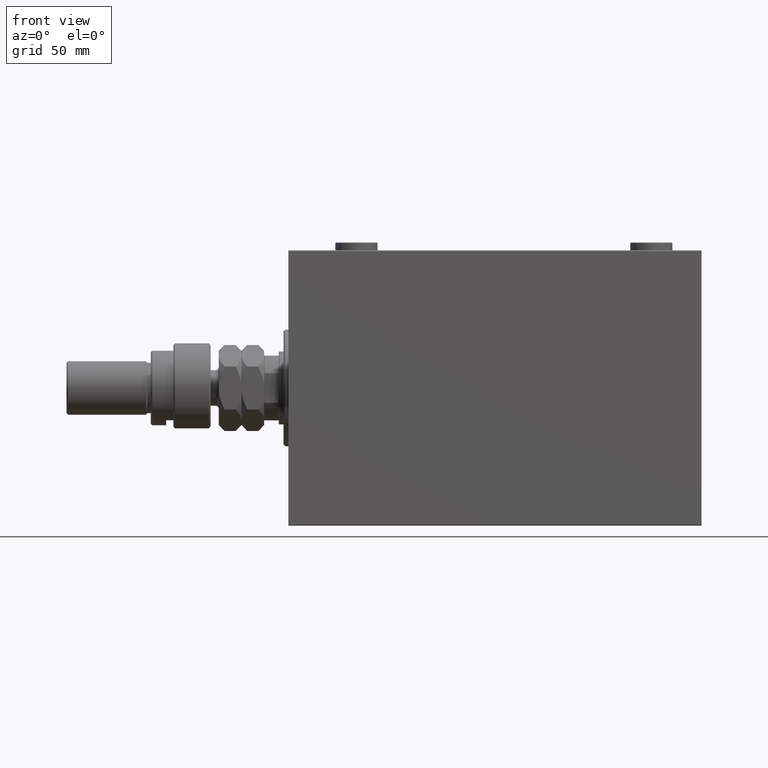
[diagram: clean part render]
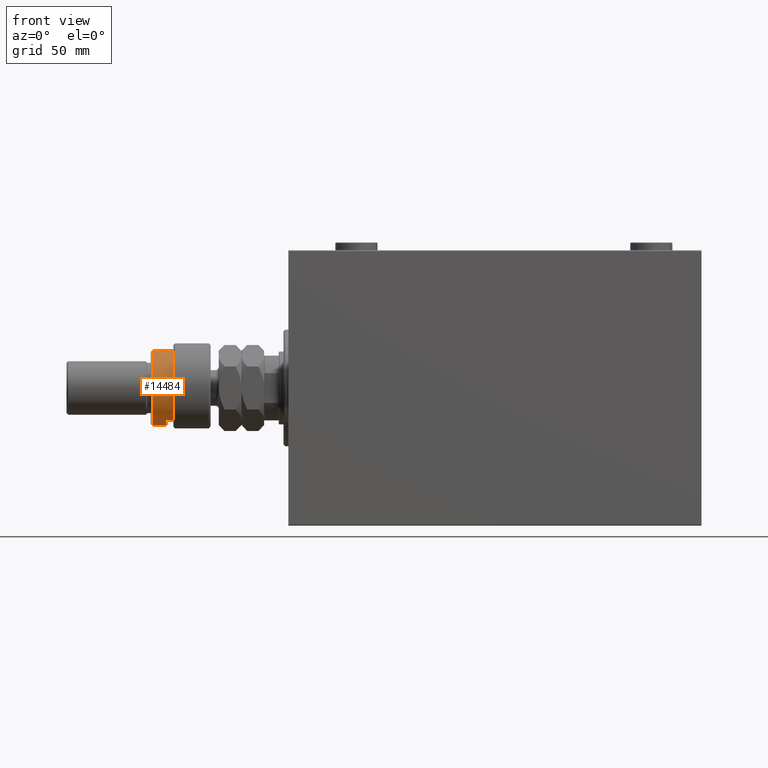
[diagram: same view with one face highlighted and labeled with its STEP entity id]
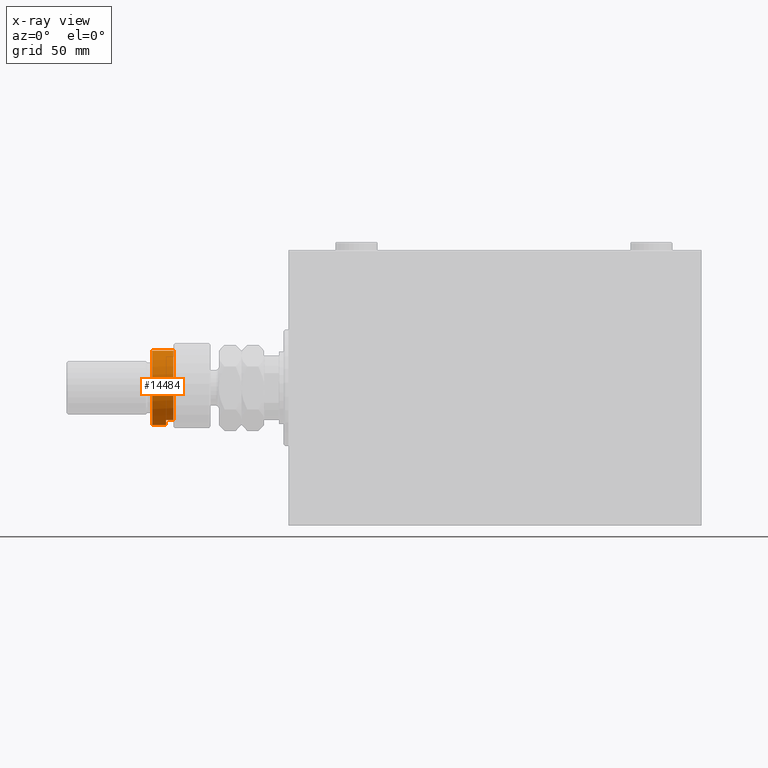
[diagram: x-ray of the same camera — body ghosted, the highlighted face saturated]
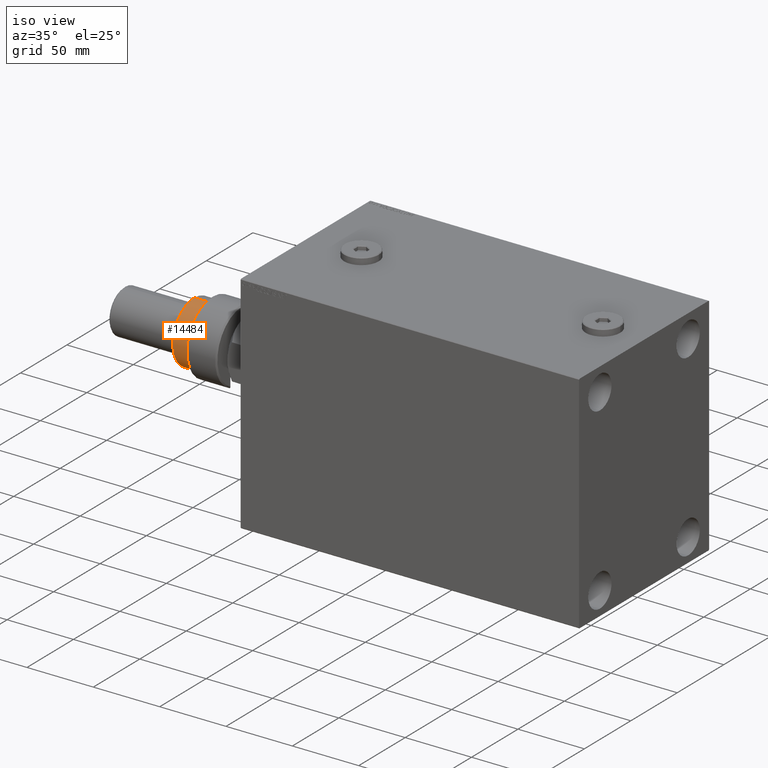
[diagram: same view with one face highlighted and labeled with its STEP entity id]
A machine part, front view. The second image highlights one B-rep face of the part: STEP entity #14484.
The next image is the same camera in x-ray: the body ghosted, the highlighted face saturated — about 0% of this face is hidden behind the body in this view.
A second angle (iso view) of the same face is appended — the face is thin or edge-on in the first view.
In plain terms, the highlighted cylindrical surface (partial cylindrical patch) has radius 23 mm, axis along (1, -0, -0).
Its self-contained STEP definition (entity closure, byte-faithful):
#106 = DIRECTION ( 'NONE',  ( 0.000000000000000000, 0.000000000000000000, -1.000000000000000000 ) ) ;
#1473 = CARTESIAN_POINT ( 'NONE',  ( 0.000000000000000000, 0.000000000000000000, 23.00000000000000000 ) ) ;
#2001 = VERTEX_POINT ( 'NONE', #19569 ) ;
#3390 = ORIENTED_EDGE ( 'NONE', *, *, #23024, .T. ) ;
#3996 = CARTESIAN_POINT ( 'NONE',  ( -23.00000000000000000, 0.000000000000000000, 37.00000000000000000 ) ) ;
#4250 = DIRECTION ( 'NONE',  ( -0.000000000000000000, -0.000000000000000000, -1.000000000000000000 ) ) ;
#4799 = LINE ( 'NONE', #31361, #11469 ) ;
#5177 = DIRECTION ( 'NONE',  ( -0.000000000000000000, -0.000000000000000000, -1.000000000000000000 ) ) ;
#6992 = EDGE_CURVE ( 'NONE', #31527, #31189, #41723, .T. ) ;
#7149 = CARTESIAN_POINT ( 'NONE',  ( 0.000000000000000000, 0.000000000000000000, 36.00000000000002842 ) ) ;
#7890 = ORIENTED_EDGE ( 'NONE', *, *, #18812, .F. ) ;
#7980 = ORIENTED_EDGE ( 'NONE', *, *, #41107, .T. ) ;
#8624 = CARTESIAN_POINT ( 'NONE',  ( 23.00000000000000000, 2.816687638038912352E-15, 37.00000000000000000 ) ) ;
#9263 = CIRCLE ( 'NONE', #24830, 23.00000000000000000 ) ;
#9884 = CARTESIAN_POINT ( 'NONE',  ( -19.91858428704208350, -11.49999999999999645, 27.50000000000000000 ) ) ;
#10770 = VERTEX_POINT ( 'NONE', #17919 ) ;
#11469 = VECTOR ( 'NONE', #31132, 1000.000000000000000 ) ;
#13145 = VERTEX_POINT ( 'NONE', #9884 ) ;
#14484 = ADVANCED_FACE ( 'NONE', ( #31495 ), #19585, .T. ) ;
#16398 = DIRECTION ( 'NONE',  ( -1.000000000000000000, 0.000000000000000000, 0.000000000000000000 ) ) ;
#17919 = CARTESIAN_POINT ( 'NONE',  ( -23.00000000000000000, 0.000000000000000000, 36.00000000000002842 ) ) ;
#18812 = EDGE_CURVE ( 'NONE', #13145, #29733, #9263, .T. ) ;
#18865 = DIRECTION ( 'NONE',  ( -0.000000000000000000, -0.000000000000000000, -1.000000000000000000 ) ) ;
#19123 = ORIENTED_EDGE ( 'NONE', *, *, #43748, .T. ) ;
#19569 = CARTESIAN_POINT ( 'NONE',  ( 23.00000000000000000, 2.816687638038912352E-15, 36.00000000000002842 ) ) ;
#19585 = CYLINDRICAL_SURFACE ( 'NONE', #44188, 23.00000000000000000 ) ;
#20587 = DIRECTION ( 'NONE',  ( -1.000000000000000000, 0.000000000000000000, 0.000000000000000000 ) ) ;
#20662 = AXIS2_PLACEMENT_3D ( 'NONE', #1473, #30499, #23892 ) ;
#23024 = EDGE_CURVE ( 'NONE', #10770, #29733, #37428, .T. ) ;
#23068 = CARTESIAN_POINT ( 'NONE',  ( 0.000000000000000000, 0.000000000000000000, 27.50000000000000000 ) ) ;
#23892 = DIRECTION ( 'NONE',  ( 1.000000000000000000, 0.000000000000000000, 0.000000000000000000 ) ) ;
#24007 = CIRCLE ( 'NONE', #36487, 23.00000000000000000 ) ;
#24830 = AXIS2_PLACEMENT_3D ( 'NONE', #23068, #43521, #20587 ) ;
#24983 = CARTESIAN_POINT ( 'NONE',  ( 23.00000000000000000, 2.816687638038912352E-15, 23.00000000000000000 ) ) ;
#27816 = EDGE_LOOP ( 'NONE', ( #28636, #19123, #3390, #7890, #7980, #40349 ) ) ;
#28636 = ORIENTED_EDGE ( 'NONE', *, *, #40441, .F. ) ;
#29733 = VERTEX_POINT ( 'NONE', #46738 ) ;
#30499 = DIRECTION ( 'NONE',  ( 0.000000000000000000, 0.000000000000000000, 1.000000000000000000 ) ) ;
#30831 = LINE ( 'NONE', #8624, #34853 ) ;
#31132 = DIRECTION ( 'NONE',  ( -0.000000000000000000, -0.000000000000000000, -1.000000000000000000 ) ) ;
#31189 = VERTEX_POINT ( 'NONE', #24983 ) ;
#31261 = VECTOR ( 'NONE', #18865, 1000.000000000000000 ) ;
#31361 = CARTESIAN_POINT ( 'NONE',  ( -19.91858428704208706, -11.50000000000000000, 37.00000000000000000 ) ) ;
#31495 = FACE_OUTER_BOUND ( 'NONE', #27816, .T. ) ;
#31527 = VERTEX_POINT ( 'NONE', #47630 ) ;
#33267 = DIRECTION ( 'NONE',  ( 1.000000000000000000, 0.000000000000000000, 0.000000000000000000 ) ) ;
#34853 = VECTOR ( 'NONE', #4250, 1000.000000000000000 ) ;
#36487 = AXIS2_PLACEMENT_3D ( 'NONE', #7149, #106, #33267 ) ;
#37428 = LINE ( 'NONE', #3996, #31261 ) ;
#40349 = ORIENTED_EDGE ( 'NONE', *, *, #6992, .T. ) ;
#40441 = EDGE_CURVE ( 'NONE', #2001, #31189, #30831, .T. ) ;
#41107 = EDGE_CURVE ( 'NONE', #13145, #31527, #4799, .T. ) ;
#41723 = CIRCLE ( 'NONE', #20662, 23.00000000000000000 ) ;
#43521 = DIRECTION ( 'NONE',  ( 0.000000000000000000, 0.000000000000000000, -1.000000000000000000 ) ) ;
#43748 = EDGE_CURVE ( 'NONE', #2001, #10770, #24007, .T. ) ;
#44188 = AXIS2_PLACEMENT_3D ( 'NONE', #45447, #5177, #16398 ) ;
#45447 = CARTESIAN_POINT ( 'NONE',  ( 0.000000000000000000, 0.000000000000000000, 37.00000000000000000 ) ) ;
#46738 = CARTESIAN_POINT ( 'NONE',  ( -23.00000000000000000, 0.000000000000000000, 27.50000000000000000 ) ) ;
#47630 = CARTESIAN_POINT ( 'NONE',  ( -19.91858428704208706, -11.50000000000000000, 23.00000000000000000 ) ) ;